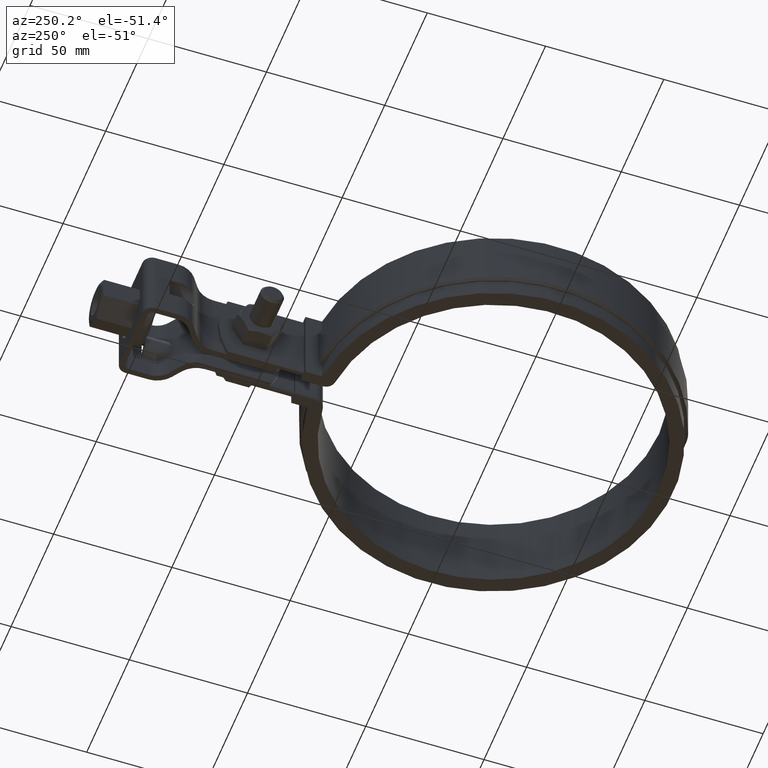
[diagram: clean part render]
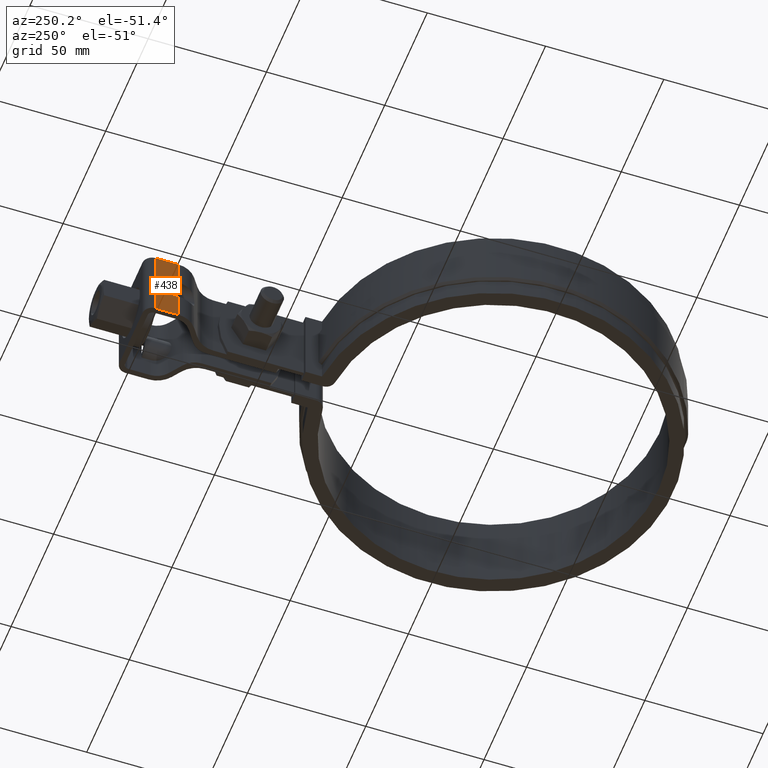
[diagram: same view with one face highlighted and labeled with its STEP entity id]
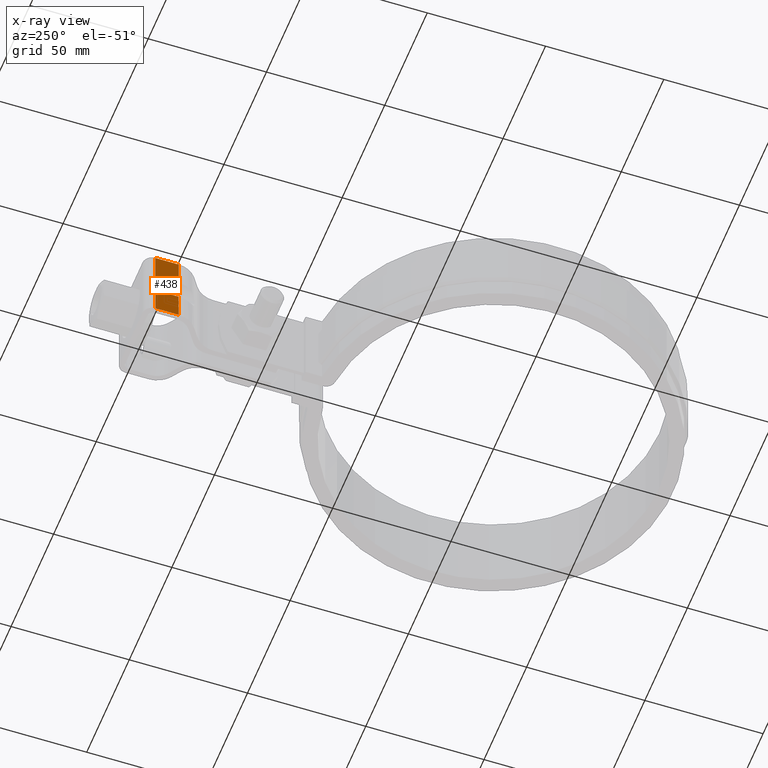
[diagram: x-ray of the same camera — body ghosted, the highlighted face saturated]
A machine part, auxiliary view. The second image highlights one B-rep face of the part: STEP entity #438.
The next image is the same camera in x-ray: the body ghosted, the highlighted face saturated — about 0% of this face is hidden behind the body in this view.
In plain terms, the highlighted planar face has unit normal (-1, 0, 0).
Its self-contained STEP definition (entity closure, byte-faithful):
#438 = ADVANCED_FACE( '', ( #754 ), #755, .T. );
#754 = FACE_OUTER_BOUND( '', #1889, .T. );
#755 = PLANE( '', #1890 );
#1889 = EDGE_LOOP( '', ( #4581, #4582, #4583, #4584, #4585, #4586, #4587, #4588 ) );
#1890 = AXIS2_PLACEMENT_3D( '', #4589, #4590, #4591 );
#4581 = ORIENTED_EDGE( '', *, *, #5330, .T. );
#4582 = ORIENTED_EDGE( '', *, *, #5230, .T. );
#4583 = ORIENTED_EDGE( '', *, *, #5271, .F. );
#4584 = ORIENTED_EDGE( '', *, *, #5226, .F. );
#4585 = ORIENTED_EDGE( '', *, *, #5247, .T. );
#4586 = ORIENTED_EDGE( '', *, *, #5288, .F. );
#4587 = ORIENTED_EDGE( '', *, *, #5311, .F. );
#4588 = ORIENTED_EDGE( '', *, *, #5296, .T. );
#4589 = CARTESIAN_POINT( '', ( -17.5000000000000, 149.297380707447, -32.0000000000000 ) );
#4590 = DIRECTION( '', ( -1.00000000000000, 6.93889390390723E-017, 0.000000000000000 ) );
#4591 = DIRECTION( '', ( 6.93889390390723E-017, 1.00000000000000, 0.000000000000000 ) );
#5226 = EDGE_CURVE( '', #5872, #5874, #5875, .T. );
#5230 = EDGE_CURVE( '', #5882, #5880, #5883, .T. );
#5247 = EDGE_CURVE( '', #5872, #5910, #5911, .T. );
#5271 = EDGE_CURVE( '', #5874, #5880, #5949, .T. );
#5288 = EDGE_CURVE( '', #5977, #5910, #5979, .T. );
#5296 = EDGE_CURVE( '', #5994, #5992, #5995, .T. );
#5311 = EDGE_CURVE( '', #5994, #5977, #6019, .T. );
#5330 = EDGE_CURVE( '', #5992, #5882, #6043, .T. );
#5872 = VERTEX_POINT( '', #8641 );
#5874 = VERTEX_POINT( '', #8658 );
#5875 = LINE( '', #8659, #8660 );
#5880 = VERTEX_POINT( '', #8665 );
#5882 = VERTEX_POINT( '', #8667 );
#5883 = LINE( '', #8668, #8669 );
#5910 = VERTEX_POINT( '', #8778 );
#5911 = LINE( '', #8779, #8780 );
#5949 = LINE( '', #8835, #8836 );
#5977 = VERTEX_POINT( '', #8875 );
#5979 = LINE( '', #8877, #8878 );
#5992 = VERTEX_POINT( '', #8895 );
#5994 = VERTEX_POINT( '', #8897 );
#5995 = LINE( '', #8898, #8899 );
#6019 = LINE( '', #8932, #8933 );
#6043 = LINE( '', #8966, #8967 );
#8641 = CARTESIAN_POINT( '', ( -17.5000000000000, 139.503051212964, -11.5000000000000 ) );
#8658 = CARTESIAN_POINT( '', ( -17.5000000000000, 143.297380707447, -11.5000000000000 ) );
#8659 = CARTESIAN_POINT( '', ( -17.5000000000000, 128.297380707447, -11.5000000000000 ) );
#8660 = VECTOR( '', #9642, 1000.00000000000 );
#8665 = CARTESIAN_POINT( '', ( -17.5000000000000, 143.297380707447, -20.5000000000000 ) );
#8667 = CARTESIAN_POINT( '', ( -17.5000000000000, 139.503051212964, -20.5000000000000 ) );
#8668 = CARTESIAN_POINT( '', ( -17.5000000000000, 128.297380707447, -20.5000000000000 ) );
#8669 = VECTOR( '', #9652, 1000.00000000000 );
#8778 = CARTESIAN_POINT( '', ( -17.5000000000000, 139.503051212964, -4.16333634234434E-014 ) );
#8779 = CARTESIAN_POINT( '', ( -17.5000000000000, 139.503051212964, -32.0000000000000 ) );
#8780 = VECTOR( '', #9673, 1000.00000000000 );
#8835 = CARTESIAN_POINT( '', ( -17.5000000000000, 143.297380707447, -32.0000000000000 ) );
#8836 = VECTOR( '', #9709, 1000.00000000000 );
#8875 = CARTESIAN_POINT( '', ( -17.5000000000000, 149.297380707447, -4.16333634234434E-014 ) );
#8877 = CARTESIAN_POINT( '', ( -17.5000000000000, 149.297380707447, -4.16333634234434E-014 ) );
#8878 = VECTOR( '', #9736, 1000.00000000000 );
#8895 = CARTESIAN_POINT( '', ( -17.5000000000000, 139.503051212964, -32.0000000000000 ) );
#8897 = CARTESIAN_POINT( '', ( -17.5000000000000, 149.297380707447, -32.0000000000000 ) );
#8898 = CARTESIAN_POINT( '', ( -17.5000000000000, 149.297380707447, -32.0000000000000 ) );
#8899 = VECTOR( '', #9750, 1000.00000000000 );
#8932 = CARTESIAN_POINT( '', ( -17.5000000000000, 149.297380707447, -32.0000000000000 ) );
#8933 = VECTOR( '', #9775, 1000.00000000000 );
#8966 = CARTESIAN_POINT( '', ( -17.5000000000000, 139.503051212964, -32.0000000000000 ) );
#8967 = VECTOR( '', #9812, 1000.00000000000 );
#9642 = DIRECTION( '', ( -4.11604168809452E-032, 1.00000000000000, -1.83690953073357E-016 ) );
#9652 = DIRECTION( '', ( -4.11604168809452E-032, 1.00000000000000, -1.83690953073357E-016 ) );
#9673 = DIRECTION( '', ( 0.000000000000000, 0.000000000000000, 1.00000000000000 ) );
#9709 = DIRECTION( '', ( -1.27461203448362E-032, -1.83690953073357E-016, -1.00000000000000 ) );
#9736 = DIRECTION( '', ( -6.93889390390723E-017, -1.00000000000000, 0.000000000000000 ) );
#9750 = DIRECTION( '', ( -6.93889390390723E-017, -1.00000000000000, 0.000000000000000 ) );
#9775 = DIRECTION( '', ( 0.000000000000000, 0.000000000000000, 1.00000000000000 ) );
#9812 = DIRECTION( '', ( 0.000000000000000, 0.000000000000000, 1.00000000000000 ) );